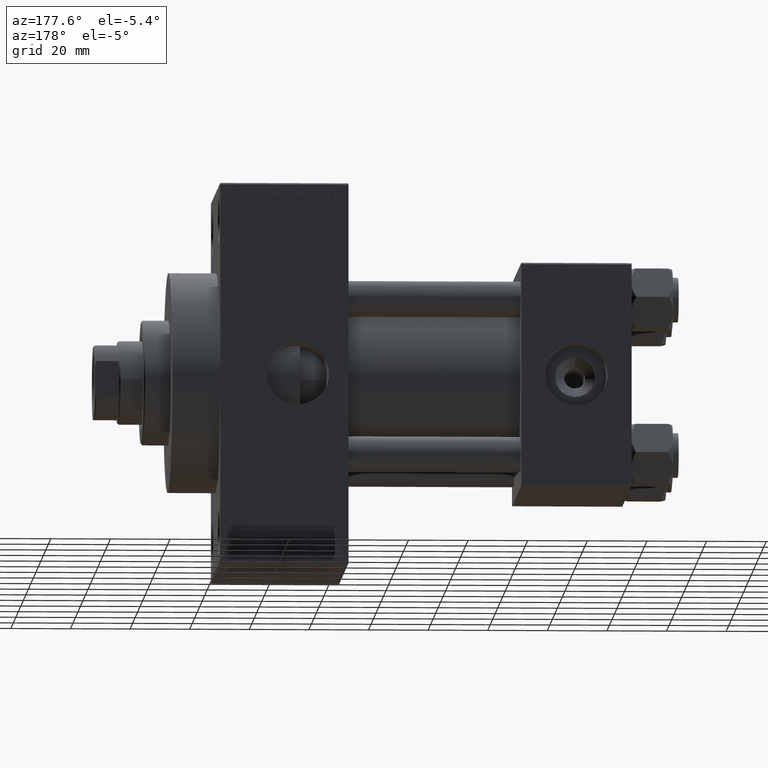
[diagram: clean part render]
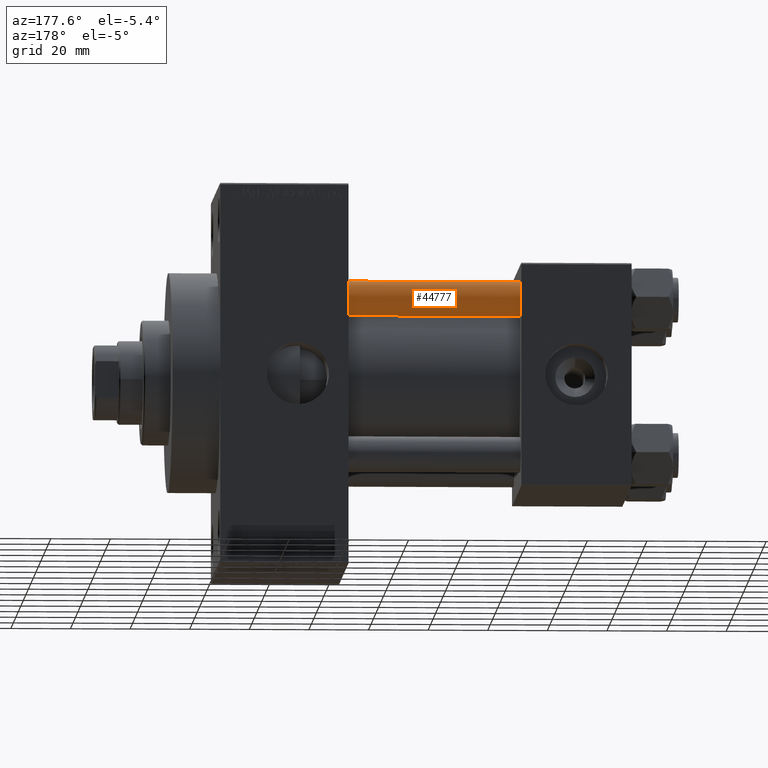
[diagram: same view with one face highlighted and labeled with its STEP entity id]
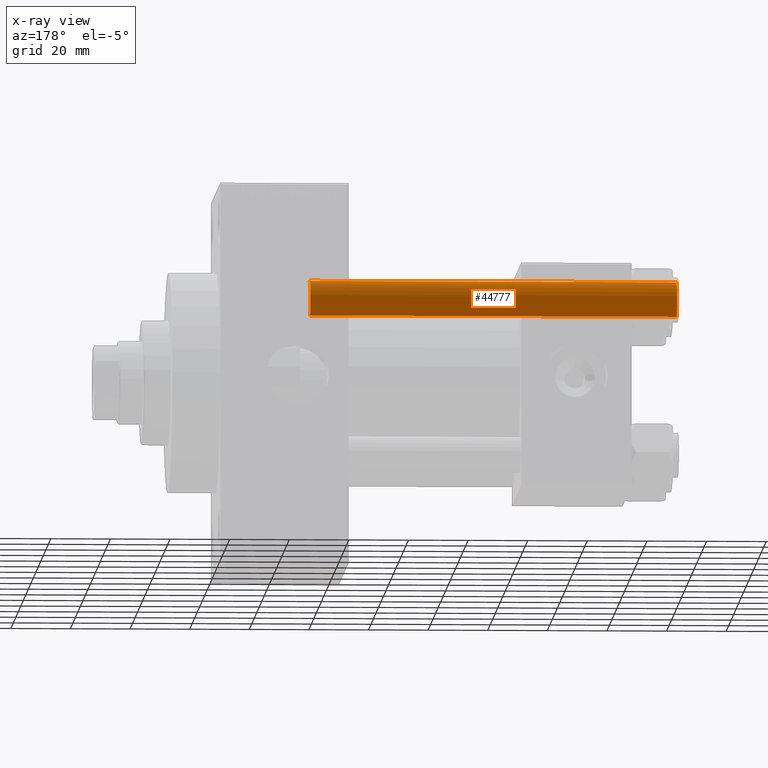
[diagram: x-ray of the same camera — body ghosted, the highlighted face saturated]
A machine part, auxiliary view. The second image highlights one B-rep face of the part: STEP entity #44777.
The next image is the same camera in x-ray: the body ghosted, the highlighted face saturated — about 0% of this face is hidden behind the body in this view.
In plain terms, the highlighted cylindrical surface (edge-blend (fillet) strip) has radius 6 mm, axis along (-1, -0, 0).
Its self-contained STEP definition (entity closure, byte-faithful):
#11 = FACE_OUTER_BOUND ( 'NONE', #16859, .T. ) ;
#588 = DIRECTION ( 'NONE',  ( 0.000000000000000000, 0.000000000000000000, -1.000000000000000000 ) ) ;
#891 = EDGE_CURVE ( 'NONE', #34986, #7458, #38082, .T. ) ;
#1342 = EDGE_CURVE ( 'NONE', #16083, #7458, #17121, .T. ) ;
#2343 = DIRECTION ( 'NONE',  ( 1.000000000000000000, 0.000000000000000000, 0.000000000000000000 ) ) ;
#6220 = ORIENTED_EDGE ( 'NONE', *, *, #9554, .T. ) ;
#7458 = VERTEX_POINT ( 'NONE', #10808 ) ;
#7608 = LINE ( 'NONE', #40330, #45038 ) ;
#9554 = EDGE_CURVE ( 'NONE', #16083, #33526, #29217, .T. ) ;
#9716 = CARTESIAN_POINT ( 'NONE',  ( -6.000000000000000888, 0.000000000000000000, 124.0000000000000000 ) ) ;
#9821 = CARTESIAN_POINT ( 'NONE',  ( 6.000000000000000888, 7.347880794884120722E-16, 0.4999999999999865663 ) ) ;
#10808 = CARTESIAN_POINT ( 'NONE',  ( -6.000000000000000888, 0.000000000000000000, 0.4999999999999865663 ) ) ;
#11002 = AXIS2_PLACEMENT_3D ( 'NONE', #29128, #43699, #13836 ) ;
#13836 = DIRECTION ( 'NONE',  ( -1.000000000000000000, 0.000000000000000000, 0.000000000000000000 ) ) ;
#16083 = VERTEX_POINT ( 'NONE', #22727 ) ;
#16859 = EDGE_LOOP ( 'NONE', ( #6220, #39016, #37113, #19385 ) ) ;
#17121 = LINE ( 'NONE', #9716, #26634 ) ;
#17423 = CYLINDRICAL_SURFACE ( 'NONE', #11002, 6.000000000000000888 ) ;
#19385 = ORIENTED_EDGE ( 'NONE', *, *, #1342, .F. ) ;
#20041 = AXIS2_PLACEMENT_3D ( 'NONE', #32794, #588, #39987 ) ;
#22727 = CARTESIAN_POINT ( 'NONE',  ( -6.000000000000000888, 0.000000000000000000, 123.5000000000000426 ) ) ;
#24045 = CARTESIAN_POINT ( 'NONE',  ( 0.000000000000000000, 0.000000000000000000, 0.4999999999999865663 ) ) ;
#26634 = VECTOR ( 'NONE', #30824, 1000.000000000000000 ) ;
#27631 = DIRECTION ( 'NONE',  ( -0.000000000000000000, -0.000000000000000000, 1.000000000000000000 ) ) ;
#29128 = CARTESIAN_POINT ( 'NONE',  ( 0.000000000000000000, 0.000000000000000000, 124.0000000000000000 ) ) ;
#29217 = CIRCLE ( 'NONE', #20041, 6.000000000000000888 ) ;
#30824 = DIRECTION ( 'NONE',  ( -0.000000000000000000, -0.000000000000000000, -1.000000000000000000 ) ) ;
#31711 = EDGE_CURVE ( 'NONE', #33526, #34986, #7608, .T. ) ;
#32211 = CARTESIAN_POINT ( 'NONE',  ( 6.000000000000000888, 7.347880794884120722E-16, 123.5000000000000426 ) ) ;
#32794 = CARTESIAN_POINT ( 'NONE',  ( 0.000000000000000000, 0.000000000000000000, 123.5000000000000426 ) ) ;
#32909 = DIRECTION ( 'NONE',  ( -0.000000000000000000, -0.000000000000000000, -1.000000000000000000 ) ) ;
#33526 = VERTEX_POINT ( 'NONE', #32211 ) ;
#34258 = AXIS2_PLACEMENT_3D ( 'NONE', #24045, #27631, #2343 ) ;
#34986 = VERTEX_POINT ( 'NONE', #9821 ) ;
#37113 = ORIENTED_EDGE ( 'NONE', *, *, #891, .T. ) ;
#38082 = CIRCLE ( 'NONE', #34258, 6.000000000000000888 ) ;
#39016 = ORIENTED_EDGE ( 'NONE', *, *, #31711, .T. ) ;
#39987 = DIRECTION ( 'NONE',  ( 1.000000000000000000, 0.000000000000000000, 0.000000000000000000 ) ) ;
#40330 = CARTESIAN_POINT ( 'NONE',  ( 6.000000000000000888, 7.347880794884120722E-16, 124.0000000000000000 ) ) ;
#43699 = DIRECTION ( 'NONE',  ( -0.000000000000000000, -0.000000000000000000, -1.000000000000000000 ) ) ;
#44777 = ADVANCED_FACE ( 'NONE', ( #11 ), #17423, .T. ) ;
#45038 = VECTOR ( 'NONE', #32909, 1000.000000000000000 ) ;